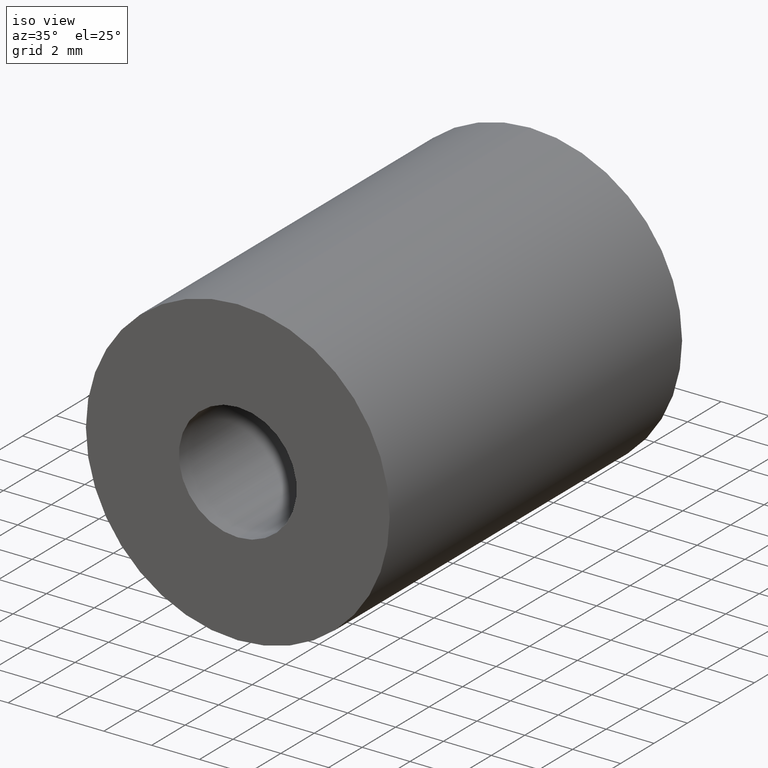
[diagram: clean part render]
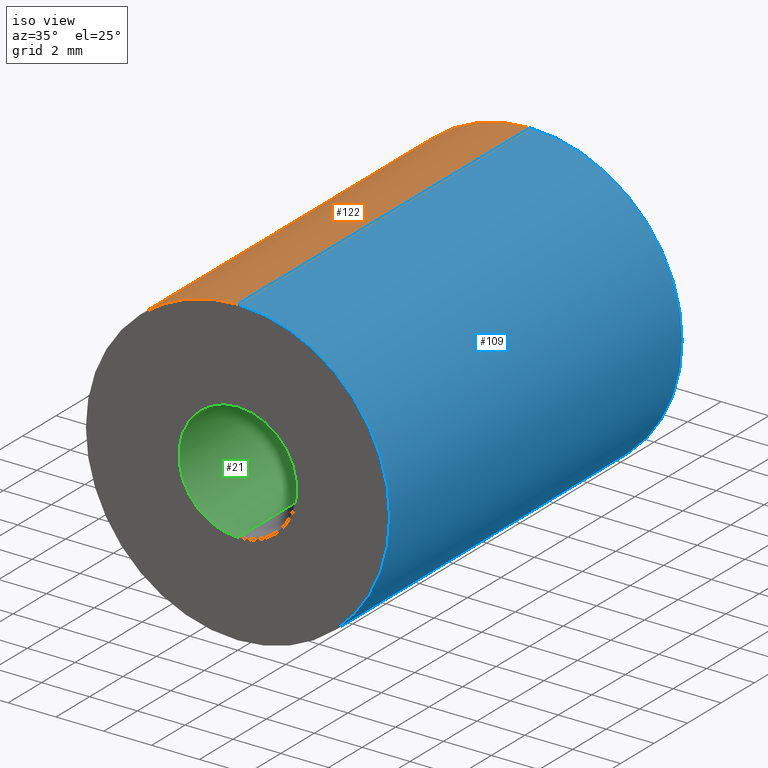
[diagram: same view with three faces highlighted in distinct colors, each labeled with its STEP entity id]
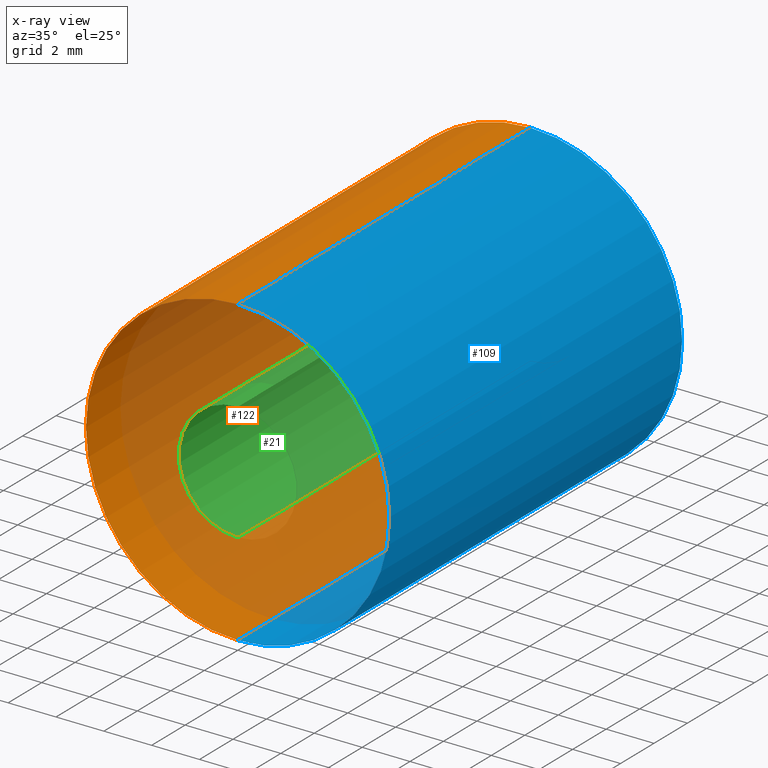
[diagram: x-ray of the same camera — body ghosted, the three highlighted faces saturated]
A machine part, iso view with three faces highlighted in distinct colors.
The next image is the same camera in x-ray (body ghosted, the three faces saturated) — at least one of them is partly hidden behind the body in this view.
Their STEP definitions:

[orange] entity #122 — the highlighted cylindrical surface (partial cylindrical patch) has radius 6.35 mm, axis along (-0, -1, -0).
#6 = DIRECTION ( 'NONE',  ( 0.0000000000000000000, 1.000000000000000000, 0.0000000000000000000 ) ) ;
#7 = LINE ( 'NONE', #59, #86 ) ;
#10 = CARTESIAN_POINT ( 'NONE',  ( 3.061616997868383000E-017, 0.0000000000000000000, 0.2500000000000000000 ) ) ;
#13 = CARTESIAN_POINT ( 'NONE',  ( 0.0000000000000000000, 0.6875000000000000000, 0.0000000000000000000 ) ) ;
#18 = VERTEX_POINT ( 'NONE', #97 ) ;
#20 = FACE_OUTER_BOUND ( 'NONE', #183, .T. ) ;
#29 = DIRECTION ( 'NONE',  ( -0.0000000000000000000, -1.000000000000000000, -0.0000000000000000000 ) ) ;
#40 = CIRCLE ( 'NONE', #48, 0.2500000000000000000 ) ;
#42 = ORIENTED_EDGE ( 'NONE', *, *, #94, .T. ) ;
#48 = AXIS2_PLACEMENT_3D ( 'NONE', #112, #6, #211 ) ;
#55 = EDGE_CURVE ( 'NONE', #74, #129, #7, .T. ) ;
#59 = CARTESIAN_POINT ( 'NONE',  ( 3.061616997868383000E-017, 0.6875000000000000000, 0.2500000000000000000 ) ) ;
#64 = DIRECTION ( 'NONE',  ( 0.0000000000000000000, 1.000000000000000000, 0.0000000000000000000 ) ) ;
#66 = VECTOR ( 'NONE', #29, 39.37007874015748100 ) ;
#70 = CARTESIAN_POINT ( 'NONE',  ( 0.0000000000000000000, 0.0000000000000000000, -0.2500000000000000000 ) ) ;
#74 = VERTEX_POINT ( 'NONE', #147 ) ;
#75 = EDGE_CURVE ( 'NONE', #18, #74, #40, .T. ) ;
#81 = CIRCLE ( 'NONE', #107, 0.2500000000000000000 ) ;
#84 = VERTEX_POINT ( 'NONE', #70 ) ;
#86 = VECTOR ( 'NONE', #127, 39.37007874015748100 ) ;
#94 = EDGE_CURVE ( 'NONE', #84, #129, #81, .T. ) ;
#97 = CARTESIAN_POINT ( 'NONE',  ( 0.0000000000000000000, 0.6875000000000000000, -0.2500000000000000000 ) ) ;
#107 = AXIS2_PLACEMENT_3D ( 'NONE', #148, #64, #186 ) ;
#112 = CARTESIAN_POINT ( 'NONE',  ( 0.0000000000000000000, 0.6875000000000000000, 0.0000000000000000000 ) ) ;
#122 = ADVANCED_FACE ( 'NONE', ( #20 ), #216, .T. ) ;
#127 = DIRECTION ( 'NONE',  ( -0.0000000000000000000, -1.000000000000000000, -0.0000000000000000000 ) ) ;
#129 = VERTEX_POINT ( 'NONE', #10 ) ;
#134 = EDGE_CURVE ( 'NONE', #18, #84, #196, .T. ) ;
#147 = CARTESIAN_POINT ( 'NONE',  ( 3.061616997868383000E-017, 0.6875000000000000000, 0.2500000000000000000 ) ) ;
#148 = CARTESIAN_POINT ( 'NONE',  ( 0.0000000000000000000, 0.0000000000000000000, 0.0000000000000000000 ) ) ;
#149 = DIRECTION ( 'NONE',  ( -0.0000000000000000000, -1.000000000000000000, -0.0000000000000000000 ) ) ;
#157 = AXIS2_PLACEMENT_3D ( 'NONE', #13, #149, #175 ) ;
#167 = ORIENTED_EDGE ( 'NONE', *, *, #134, .T. ) ;
#172 = ORIENTED_EDGE ( 'NONE', *, *, #55, .F. ) ;
#175 = DIRECTION ( 'NONE',  ( 0.0000000000000000000, 0.0000000000000000000, -1.000000000000000000 ) ) ;
#177 = ORIENTED_EDGE ( 'NONE', *, *, #75, .F. ) ;
#183 = EDGE_LOOP ( 'NONE', ( #172, #177, #167, #42 ) ) ;
#186 = DIRECTION ( 'NONE',  ( 0.0000000000000000000, 0.0000000000000000000, 1.000000000000000000 ) ) ;
#196 = LINE ( 'NONE', #219, #66 ) ;
#211 = DIRECTION ( 'NONE',  ( 0.0000000000000000000, 0.0000000000000000000, 1.000000000000000000 ) ) ;
#216 = CYLINDRICAL_SURFACE ( 'NONE', #157, 0.2500000000000000000 ) ;
#219 = CARTESIAN_POINT ( 'NONE',  ( 0.0000000000000000000, 0.6875000000000000000, -0.2500000000000000000 ) ) ;

[blue] entity #109 — the highlighted cylindrical surface (partial cylindrical patch) has radius 6.35 mm, axis along (-0, -1, -0).
#7 = LINE ( 'NONE', #59, #86 ) ;
#9 = DIRECTION ( 'NONE',  ( -0.0000000000000000000, -1.000000000000000000, -0.0000000000000000000 ) ) ;
#10 = CARTESIAN_POINT ( 'NONE',  ( 3.061616997868383000E-017, 0.0000000000000000000, 0.2500000000000000000 ) ) ;
#17 = CYLINDRICAL_SURFACE ( 'NONE', #153, 0.2500000000000000000 ) ;
#18 = VERTEX_POINT ( 'NONE', #97 ) ;
#23 = CARTESIAN_POINT ( 'NONE',  ( 0.0000000000000000000, 0.6875000000000000000, 0.0000000000000000000 ) ) ;
#27 = DIRECTION ( 'NONE',  ( 0.0000000000000000000, 0.0000000000000000000, -1.000000000000000000 ) ) ;
#29 = DIRECTION ( 'NONE',  ( -0.0000000000000000000, -1.000000000000000000, -0.0000000000000000000 ) ) ;
#32 = CIRCLE ( 'NONE', #56, 0.2500000000000000000 ) ;
#37 = EDGE_CURVE ( 'NONE', #74, #18, #123, .T. ) ;
#45 = FACE_OUTER_BOUND ( 'NONE', #115, .T. ) ;
#53 = AXIS2_PLACEMENT_3D ( 'NONE', #23, #178, #145 ) ;
#55 = EDGE_CURVE ( 'NONE', #74, #129, #7, .T. ) ;
#56 = AXIS2_PLACEMENT_3D ( 'NONE', #169, #76, #199 ) ;
#58 = ORIENTED_EDGE ( 'NONE', *, *, #55, .T. ) ;
#59 = CARTESIAN_POINT ( 'NONE',  ( 3.061616997868383000E-017, 0.6875000000000000000, 0.2500000000000000000 ) ) ;
#66 = VECTOR ( 'NONE', #29, 39.37007874015748100 ) ;
#70 = CARTESIAN_POINT ( 'NONE',  ( 0.0000000000000000000, 0.0000000000000000000, -0.2500000000000000000 ) ) ;
#73 = CARTESIAN_POINT ( 'NONE',  ( 0.0000000000000000000, 0.6875000000000000000, 0.0000000000000000000 ) ) ;
#74 = VERTEX_POINT ( 'NONE', #147 ) ;
#76 = DIRECTION ( 'NONE',  ( 0.0000000000000000000, 1.000000000000000000, 0.0000000000000000000 ) ) ;
#84 = VERTEX_POINT ( 'NONE', #70 ) ;
#86 = VECTOR ( 'NONE', #127, 39.37007874015748100 ) ;
#97 = CARTESIAN_POINT ( 'NONE',  ( 0.0000000000000000000, 0.6875000000000000000, -0.2500000000000000000 ) ) ;
#109 = ADVANCED_FACE ( 'NONE', ( #45 ), #17, .T. ) ;
#115 = EDGE_LOOP ( 'NONE', ( #206, #58, #198, #140 ) ) ;
#123 = CIRCLE ( 'NONE', #53, 0.2500000000000000000 ) ;
#127 = DIRECTION ( 'NONE',  ( -0.0000000000000000000, -1.000000000000000000, -0.0000000000000000000 ) ) ;
#129 = VERTEX_POINT ( 'NONE', #10 ) ;
#134 = EDGE_CURVE ( 'NONE', #18, #84, #196, .T. ) ;
#140 = ORIENTED_EDGE ( 'NONE', *, *, #134, .F. ) ;
#145 = DIRECTION ( 'NONE',  ( 0.0000000000000000000, 0.0000000000000000000, 1.000000000000000000 ) ) ;
#147 = CARTESIAN_POINT ( 'NONE',  ( 3.061616997868383000E-017, 0.6875000000000000000, 0.2500000000000000000 ) ) ;
#153 = AXIS2_PLACEMENT_3D ( 'NONE', #73, #9, #27 ) ;
#169 = CARTESIAN_POINT ( 'NONE',  ( 0.0000000000000000000, 0.0000000000000000000, 0.0000000000000000000 ) ) ;
#178 = DIRECTION ( 'NONE',  ( 0.0000000000000000000, 1.000000000000000000, 0.0000000000000000000 ) ) ;
#188 = EDGE_CURVE ( 'NONE', #129, #84, #32, .T. ) ;
#196 = LINE ( 'NONE', #219, #66 ) ;
#198 = ORIENTED_EDGE ( 'NONE', *, *, #188, .T. ) ;
#199 = DIRECTION ( 'NONE',  ( 0.0000000000000000000, 0.0000000000000000000, 1.000000000000000000 ) ) ;
#206 = ORIENTED_EDGE ( 'NONE', *, *, #37, .F. ) ;
#219 = CARTESIAN_POINT ( 'NONE',  ( 0.0000000000000000000, 0.6875000000000000000, -0.2500000000000000000 ) ) ;

[green] entity #21 — the highlighted cylindrical surface (partial cylindrical patch) has radius 2.4638 mm, axis along (-0, -1, -0).
#2 = LINE ( 'NONE', #136, #22 ) ;
#3 = CIRCLE ( 'NONE', #106, 0.09700000000000000300 ) ;
#16 = ORIENTED_EDGE ( 'NONE', *, *, #126, .F. ) ;
#21 = ADVANCED_FACE ( 'NONE', ( #146 ), #36, .F. ) ;
#22 = VECTOR ( 'NONE', #117, 39.37007874015748100 ) ;
#26 = DIRECTION ( 'NONE',  ( 0.0000000000000000000, 1.000000000000000000, 0.0000000000000000000 ) ) ;
#31 = CARTESIAN_POINT ( 'NONE',  ( 0.0000000000000000000, 0.6875000000000000000, -0.09700000000000000300 ) ) ;
#36 = CYLINDRICAL_SURFACE ( 'NONE', #100, 0.09700000000000000300 ) ;
#38 = ORIENTED_EDGE ( 'NONE', *, *, #43, .F. ) ;
#41 = DIRECTION ( 'NONE',  ( 0.0000000000000000000, 1.000000000000000000, 0.0000000000000000000 ) ) ;
#43 = EDGE_CURVE ( 'NONE', #220, #208, #3, .T. ) ;
#44 = CARTESIAN_POINT ( 'NONE',  ( 1.187907395172932600E-017, 0.0000000000000000000, 0.09700000000000000300 ) ) ;
#68 = EDGE_CURVE ( 'NONE', #217, #141, #132, .T. ) ;
#77 = CARTESIAN_POINT ( 'NONE',  ( 0.0000000000000000000, 0.6875000000000000000, -0.09700000000000000300 ) ) ;
#93 = DIRECTION ( 'NONE',  ( 0.0000000000000000000, 0.0000000000000000000, 1.000000000000000000 ) ) ;
#100 = AXIS2_PLACEMENT_3D ( 'NONE', #197, #166, #213 ) ;
#106 = AXIS2_PLACEMENT_3D ( 'NONE', #179, #41, #93 ) ;
#108 = ORIENTED_EDGE ( 'NONE', *, *, #68, .T. ) ;
#110 = EDGE_CURVE ( 'NONE', #141, #208, #2, .T. ) ;
#113 = CARTESIAN_POINT ( 'NONE',  ( 0.0000000000000000000, 0.6875000000000000000, 0.0000000000000000000 ) ) ;
#116 = AXIS2_PLACEMENT_3D ( 'NONE', #113, #26, #165 ) ;
#117 = DIRECTION ( 'NONE',  ( -0.0000000000000000000, -1.000000000000000000, -0.0000000000000000000 ) ) ;
#126 = EDGE_CURVE ( 'NONE', #217, #220, #161, .T. ) ;
#131 = CARTESIAN_POINT ( 'NONE',  ( 1.187907395172932600E-017, 0.6875000000000000000, 0.09700000000000000300 ) ) ;
#132 = CIRCLE ( 'NONE', #116, 0.09700000000000000300 ) ;
#136 = CARTESIAN_POINT ( 'NONE',  ( 1.187907395172932600E-017, 0.6875000000000000000, 0.09700000000000000300 ) ) ;
#141 = VERTEX_POINT ( 'NONE', #131 ) ;
#146 = FACE_OUTER_BOUND ( 'NONE', #222, .T. ) ;
#159 = VECTOR ( 'NONE', #214, 39.37007874015748100 ) ;
#161 = LINE ( 'NONE', #31, #159 ) ;
#165 = DIRECTION ( 'NONE',  ( 0.0000000000000000000, 0.0000000000000000000, 1.000000000000000000 ) ) ;
#166 = DIRECTION ( 'NONE',  ( -0.0000000000000000000, -1.000000000000000000, -0.0000000000000000000 ) ) ;
#179 = CARTESIAN_POINT ( 'NONE',  ( 0.0000000000000000000, 0.0000000000000000000, 0.0000000000000000000 ) ) ;
#197 = CARTESIAN_POINT ( 'NONE',  ( 0.0000000000000000000, 0.6875000000000000000, 0.0000000000000000000 ) ) ;
#203 = ORIENTED_EDGE ( 'NONE', *, *, #110, .T. ) ;
#208 = VERTEX_POINT ( 'NONE', #44 ) ;
#213 = DIRECTION ( 'NONE',  ( 0.0000000000000000000, 0.0000000000000000000, -1.000000000000000000 ) ) ;
#214 = DIRECTION ( 'NONE',  ( -0.0000000000000000000, -1.000000000000000000, -0.0000000000000000000 ) ) ;
#215 = CARTESIAN_POINT ( 'NONE',  ( 0.0000000000000000000, 0.0000000000000000000, -0.09700000000000000300 ) ) ;
#217 = VERTEX_POINT ( 'NONE', #77 ) ;
#220 = VERTEX_POINT ( 'NONE', #215 ) ;
#222 = EDGE_LOOP ( 'NONE', ( #108, #203, #38, #16 ) ) ;